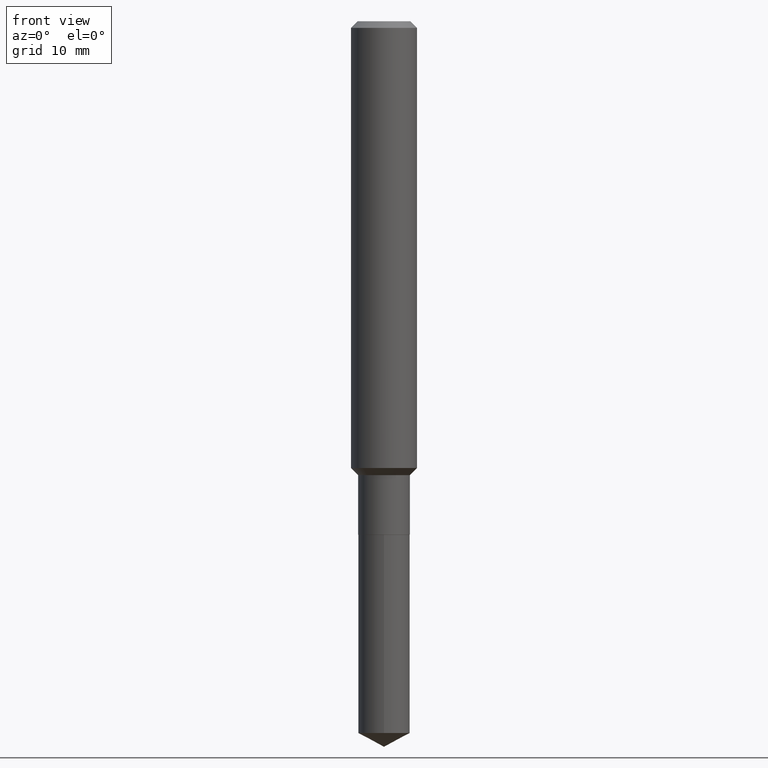
[diagram: clean part render]
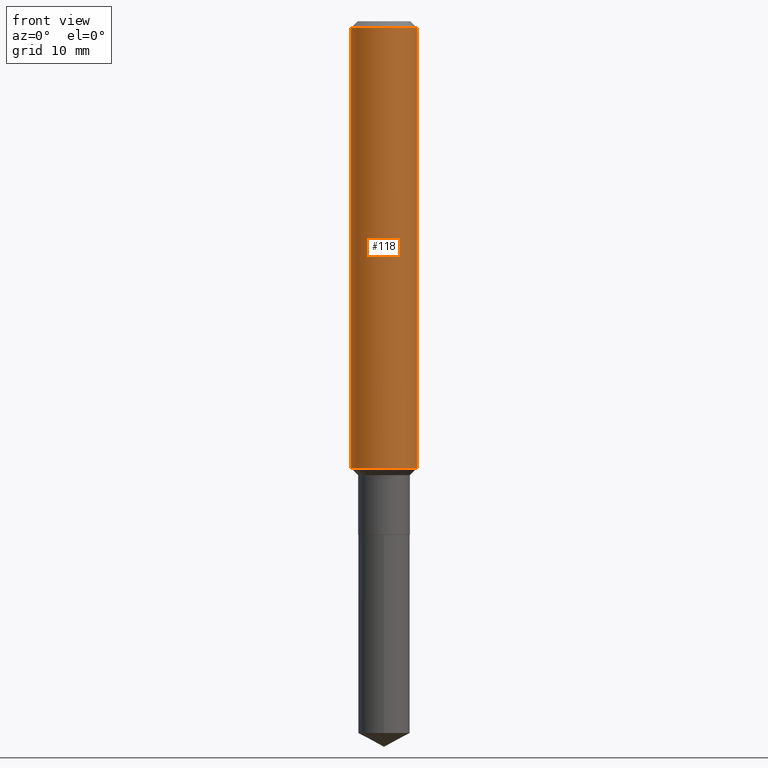
[diagram: same view with one face highlighted and labeled with its STEP entity id]
A machine part, front view. The second image highlights one B-rep face of the part: STEP entity #118.
In plain terms, the highlighted cylindrical surface (edge-blend (fillet) strip) has radius 2.9997 mm, axis along (-0, 0, 1).
Its self-contained STEP definition (entity closure, byte-faithful):
#9 = DIRECTION ( 'NONE',  ( 1.000000000000000000, -6.982962677686266711E-15, 0.000000000000000000 ) ) ;
#19 = DIRECTION ( 'NONE',  ( 1.000000000000000000, -6.982962677686266711E-15, 4.876176775795935793E-29 ) ) ;
#52 = DIRECTION ( 'NONE',  ( -2.445468806185136877E-29, 3.491481338843145188E-15, 1.000000000000000000 ) ) ;
#56 = LINE ( 'NONE', #400, #305 ) ;
#60 = DIRECTION ( 'NONE',  ( -2.445468806185136597E-29, 3.491481338843145583E-15, 1.000000000000000000 ) ) ;
#83 = EDGE_LOOP ( 'NONE', ( #88, #231, #194, #302 ) ) ;
#88 = ORIENTED_EDGE ( 'NONE', *, *, #448, .F. ) ;
#93 = DIRECTION ( 'NONE',  ( -2.445468806185136597E-29, 3.491481338843145583E-15, 1.000000000000000000 ) ) ;
#117 = VERTEX_POINT ( 'NONE', #396 ) ;
#118 = ADVANCED_FACE ( 'NONE', ( #395 ), #287, .T. ) ;
#145 = CIRCLE ( 'NONE', #399, 0.1180999999999999966 ) ;
#161 = AXIS2_PLACEMENT_3D ( 'NONE', #253, #60, #19 ) ;
#171 = DIRECTION ( 'NONE',  ( -2.445468806185136877E-29, 3.491481338843145188E-15, 1.000000000000000000 ) ) ;
#194 = ORIENTED_EDGE ( 'NONE', *, *, #464, .T. ) ;
#210 = LINE ( 'NONE', #361, #227 ) ;
#227 = VECTOR ( 'NONE', #171, 39.37007874015748143 ) ;
#231 = ORIENTED_EDGE ( 'NONE', *, *, #490, .T. ) ;
#239 = CARTESIAN_POINT ( 'NONE',  ( 0.1180999999999999966, -9.071566814582237199E-16, -0.02362000000000013741 ) ) ;
#251 = CIRCLE ( 'NONE', #339, 0.1181000000000001909 ) ;
#252 = CARTESIAN_POINT ( 'NONE',  ( 3.912994636776836330E-29, -5.586719290282915813E-15, -1.600099999999999634 ) ) ;
#253 = CARTESIAN_POINT ( 'NONE',  ( 0.000000000000000000, 0.000000000000000000, 0.000000000000000000 ) ) ;
#270 = CARTESIAN_POINT ( 'NONE',  ( 5.776197320209326656E-31, -8.246878922347558061E-17, -0.02362000000000013741 ) ) ;
#278 = DIRECTION ( 'NONE',  ( 1.000000000000000000, -6.982962677686269077E-15, 0.000000000000000000 ) ) ;
#287 = CYLINDRICAL_SURFACE ( 'NONE', #161, 0.1181000000000001077 ) ;
#300 = VERTEX_POINT ( 'NONE', #353 ) ;
#301 = EDGE_CURVE ( 'NONE', #349, #347, #145, .T. ) ;
#302 = ORIENTED_EDGE ( 'NONE', *, *, #301, .F. ) ;
#305 = VECTOR ( 'NONE', #52, 39.37007874015748143 ) ;
#309 = CARTESIAN_POINT ( 'NONE',  ( -0.1180999999999999966, -1.995443068820515466E-15, -0.02362000000000013741 ) ) ;
#339 = AXIS2_PLACEMENT_3D ( 'NONE', #252, #93, #278 ) ;
#347 = VERTEX_POINT ( 'NONE', #239 ) ;
#348 = DIRECTION ( 'NONE',  ( -2.445468806185136597E-29, 3.491481338843145583E-15, 1.000000000000000000 ) ) ;
#349 = VERTEX_POINT ( 'NONE', #309 ) ;
#353 = CARTESIAN_POINT ( 'NONE',  ( -0.1181000000000001909, -4.747568319350236827E-15, -1.600099999999999634 ) ) ;
#361 = CARTESIAN_POINT ( 'NONE',  ( 0.1181000000000001077, -8.246878922347488542E-16, 5.758764772215005345E-30 ) ) ;
#395 = FACE_OUTER_BOUND ( 'NONE', #83, .T. ) ;
#396 = CARTESIAN_POINT ( 'NONE',  ( 0.1181000000000001909, -6.411407182517665653E-15, -1.600099999999999634 ) ) ;
#399 = AXIS2_PLACEMENT_3D ( 'NONE', #270, #348, #9 ) ;
#400 = CARTESIAN_POINT ( 'NONE',  ( -0.1181000000000001077, 8.391509709326790846E-16, -5.809262341591049389E-30 ) ) ;
#448 = EDGE_CURVE ( 'NONE', #300, #349, #56, .T. ) ;
#464 = EDGE_CURVE ( 'NONE', #117, #347, #210, .T. ) ;
#490 = EDGE_CURVE ( 'NONE', #300, #117, #251, .T. ) ;